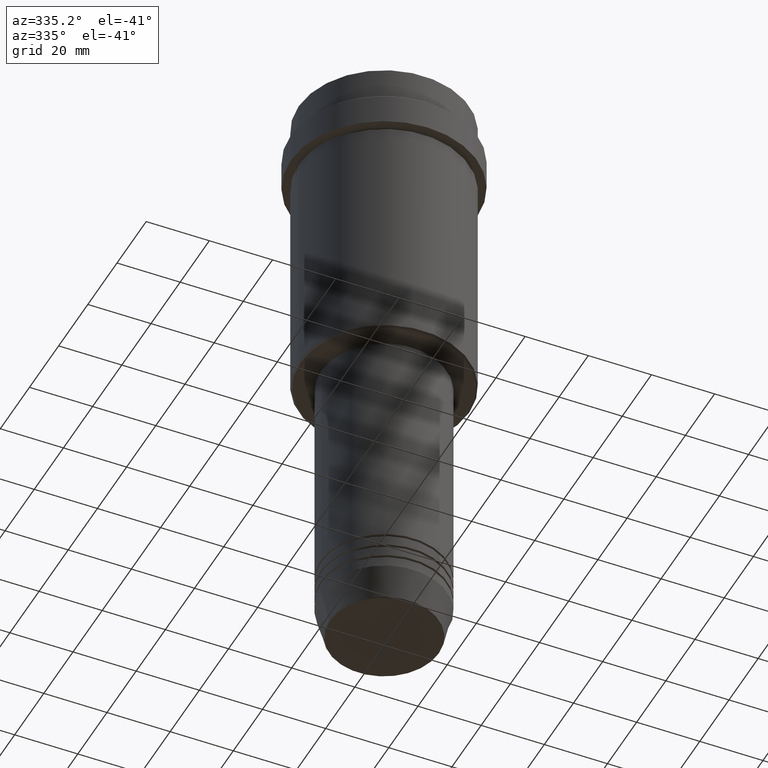
[diagram: clean part render]
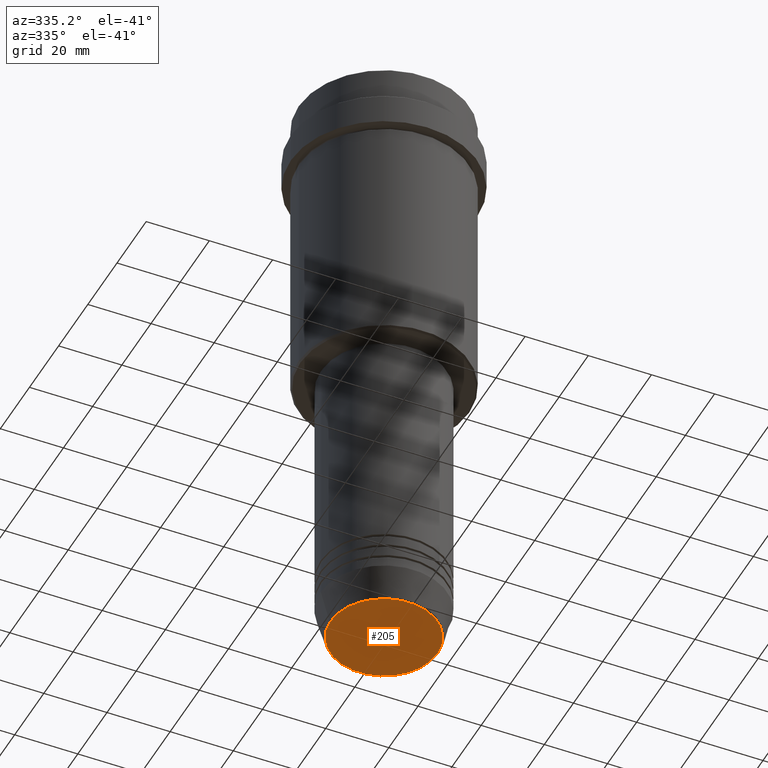
[diagram: same view with one face highlighted and labeled with its STEP entity id]
A machine part, auxiliary view. The second image highlights one B-rep face of the part: STEP entity #205.
In plain terms, the highlighted planar face has unit normal (0, -0, 1).
Its self-contained STEP definition (entity closure, byte-faithful):
#71 = DIRECTION ( 'NONE',  ( 0.000000000000000000, 0.000000000000000000, -1.000000000000000000 ) ) ;
#173 = CARTESIAN_POINT ( 'NONE',  ( -16.93684458169929741, 2.103738199747890381E-15, -193.0000000000000000 ) ) ;
#205 = ADVANCED_FACE ( 'NONE', ( #1100 ), #1340, .F. ) ;
#231 = AXIS2_PLACEMENT_3D ( 'NONE', #1115, #796, #689 ) ;
#339 = VERTEX_POINT ( 'NONE', #173 ) ;
#427 = DIRECTION ( 'NONE',  ( 0.000000000000000000, 0.000000000000000000, -1.000000000000000000 ) ) ;
#430 = ORIENTED_EDGE ( 'NONE', *, *, #1390, .T. ) ;
#475 = EDGE_LOOP ( 'NONE', ( #430, #625 ) ) ;
#494 = AXIS2_PLACEMENT_3D ( 'NONE', #937, #71, #1162 ) ;
#568 = CIRCLE ( 'NONE', #1155, 16.93684458169929741 ) ;
#625 = ORIENTED_EDGE ( 'NONE', *, *, #1205, .T. ) ;
#689 = DIRECTION ( 'NONE',  ( 1.000000000000000000, 0.000000000000000000, 0.000000000000000000 ) ) ;
#763 = VERTEX_POINT ( 'NONE', #1033 ) ;
#796 = DIRECTION ( 'NONE',  ( 0.000000000000000000, -0.000000000000000000, 1.000000000000000000 ) ) ;
#937 = CARTESIAN_POINT ( 'NONE',  ( 0.000000000000000000, 0.000000000000000000, -193.0000000000000000 ) ) ;
#973 = CARTESIAN_POINT ( 'NONE',  ( 0.000000000000000000, 0.000000000000000000, -193.0000000000000000 ) ) ;
#1002 = CIRCLE ( 'NONE', #494, 16.93684458169929741 ) ;
#1033 = CARTESIAN_POINT ( 'NONE',  ( 16.93684458169929741, 0.000000000000000000, -193.0000000000000000 ) ) ;
#1100 = FACE_OUTER_BOUND ( 'NONE', #475, .T. ) ;
#1115 = CARTESIAN_POINT ( 'NONE',  ( 0.000000000000000000, 0.000000000000000000, -193.0000000000000000 ) ) ;
#1155 = AXIS2_PLACEMENT_3D ( 'NONE', #973, #427, #1414 ) ;
#1162 = DIRECTION ( 'NONE',  ( 1.000000000000000000, 0.000000000000000000, 0.000000000000000000 ) ) ;
#1205 = EDGE_CURVE ( 'NONE', #339, #763, #1002, .T. ) ;
#1340 = PLANE ( 'NONE',  #231 ) ;
#1390 = EDGE_CURVE ( 'NONE', #763, #339, #568, .T. ) ;
#1414 = DIRECTION ( 'NONE',  ( 1.000000000000000000, 0.000000000000000000, 0.000000000000000000 ) ) ;